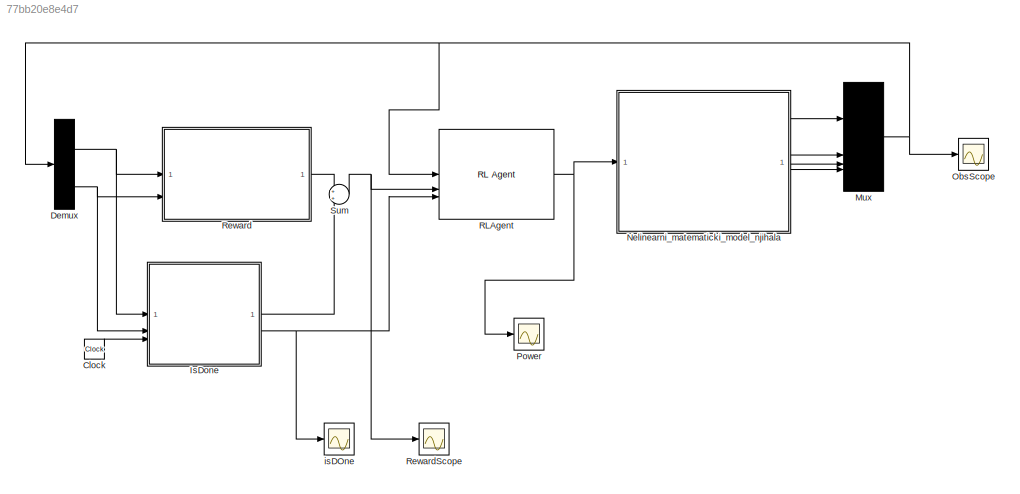
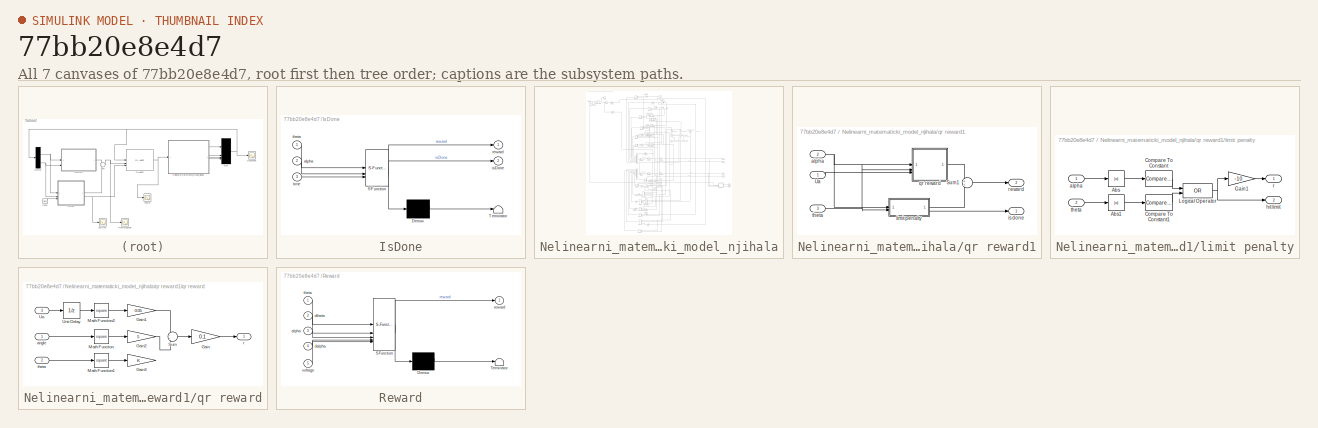
[diagram: thumbnail index - all 7 canvases of the model, root first then tree order]
MODEL slx_77bb20e8e4d7
KIND model
CONFIG AbsTol = auto
CONFIG EnableMultiTasking = off
CONFIG FixedStep = 0.01
CONFIG MaxStep = 0.01
CONFIG MinStep = auto
CONFIG RelTol = 1e-3
CONFIG SampleTimeConstraint = Unconstrained
CONFIG SolverName = FixedStepAuto
CONFIG StartTime = 0.0
CONFIG StopTime = 10
BLOCK [Clock] Clock
BLOCK [Demux] Demux
BLOCK [SubSystem] IsDone
  ErrorFcn = Stateflow.Translate.translate
  LibrarySourceBlock = simulink/User-Defined\nFunctions/MATLAB Function
  PermitHierarchicalResolution = ExplicitOnly
  SFBlockType = MATLAB Function
  TreatAsAtomicUnit = on
BLOCK [Demux] IsDone/ Demux 
  Outputs = 1
BLOCK [S-Function] IsDone/ SFunction 
  EnableBusSupport = on
  FunctionName = sf_sfun
  PortCounts = [3 3]
  SFcnIsStateOwnerBlock = off
  SFunctionDeploymentMode = off
  Tag = Stateflow S-Function 1
BLOCK [Terminator] IsDone/ Terminator 
BLOCK [Inport] IsDone/alpha
  Port = 2
BLOCK [Outport] IsDone/isDone
  Port = 2
BLOCK [Outport] IsDone/reward
BLOCK [Inport] IsDone/theta
BLOCK [Inport] IsDone/time
  Port = 3
BLOCK [Mux] Mux
  DisplayOption = signals
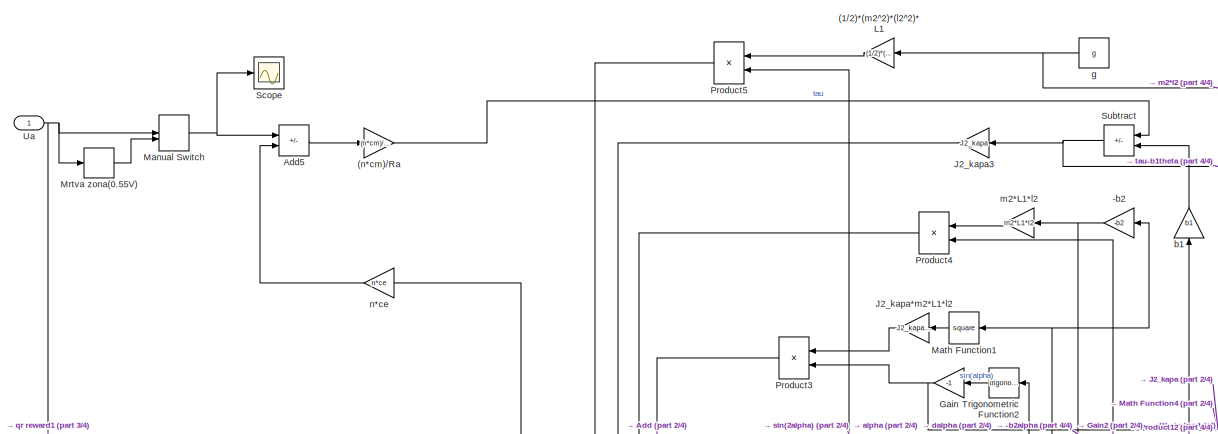
[diagram: Nelinearni_matematicki_model_njihala - part 1/4, top left region]
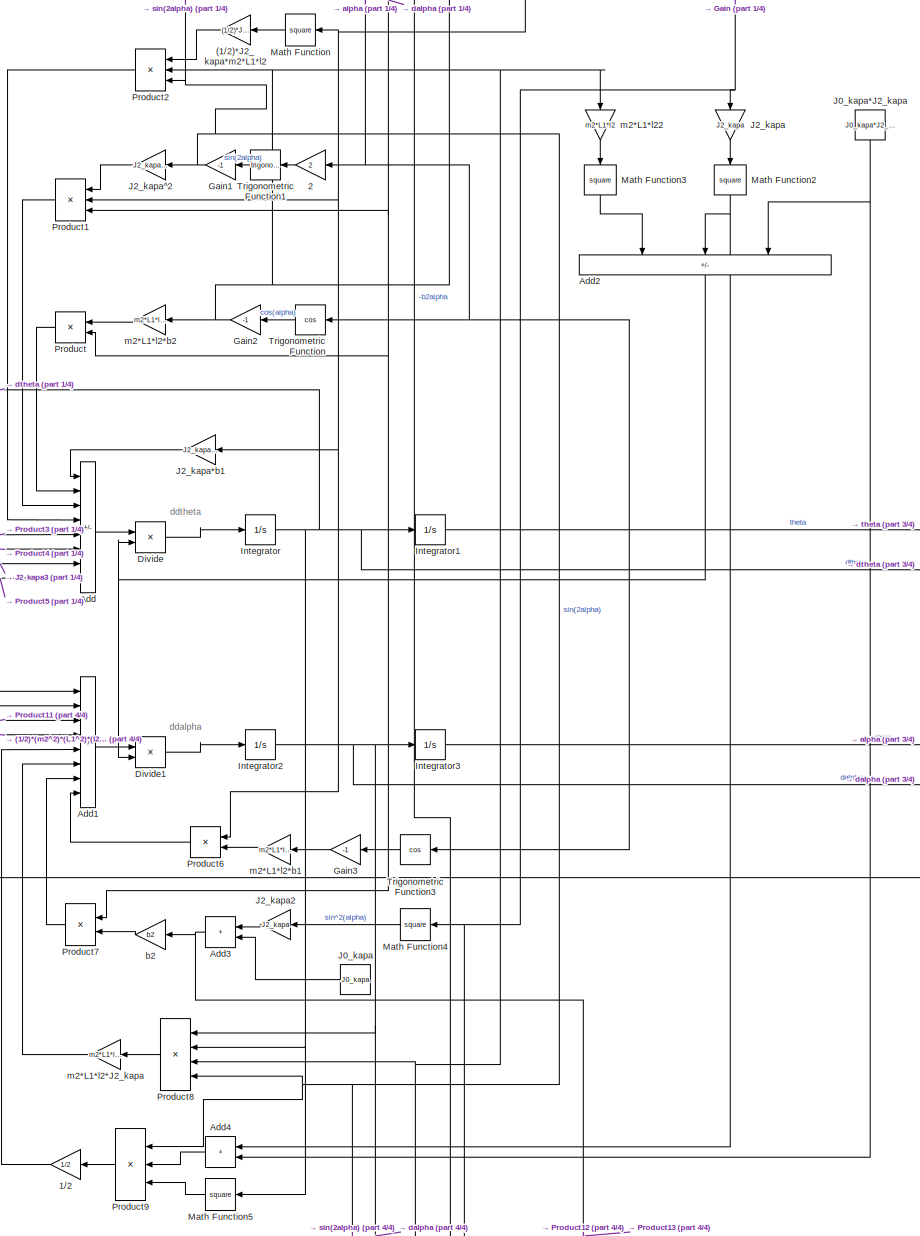
[diagram: Nelinearni_matematicki_model_njihala - part 2/4, central region]
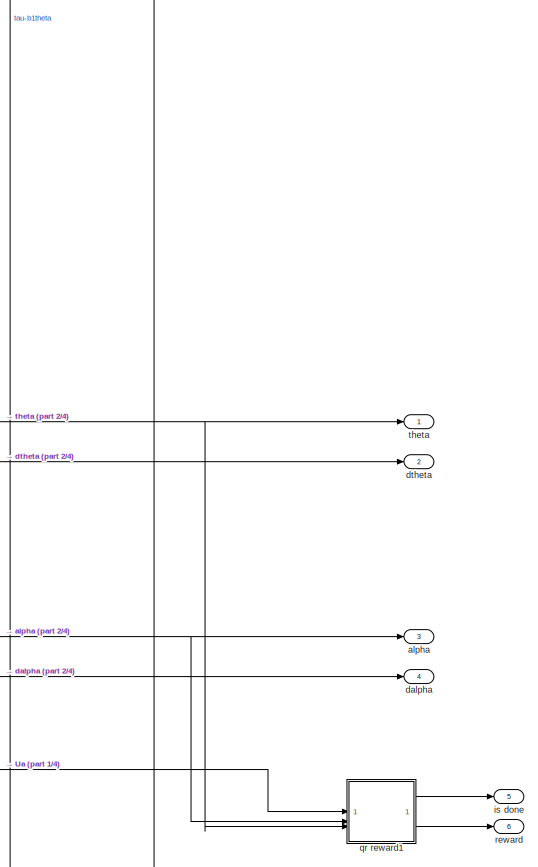
[diagram: Nelinearni_matematicki_model_njihala - part 3/4, middle right region]
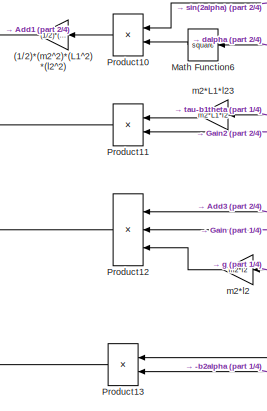
[diagram: Nelinearni_matematicki_model_njihala - part 4/4, bottom center region]
BLOCK [SubSystem] Nelinearni_matematicki_model_njihala
BLOCK [Gain] Nelinearni_matematicki_model_njihala/(1//2)*(m2^2)*(L1^2)*(l2^2)
  Gain = (1/2)*(m2^2)*(L1^2)*(l2^2)
  NameLocation = top
BLOCK [Gain] Nelinearni_matematicki_model_njihala/(1//2)*(m2^2)*(l2^2)*L1
  Gain = (1/2)*(m2^2)*(l2^2)*L1
  NameLocation = top
BLOCK [Gain] Nelinearni_matematicki_model_njihala/(1//2)*J2_kapa*m2*L1*l2
  Gain = (1/2)*J2_kapa*m2*L1*l2
  NameLocation = top
BLOCK [Gain] Nelinearni_matematicki_model_njihala/(n*cm)//Ra
  Gain = (n*cm)/Ra
BLOCK [Gain] Nelinearni_matematicki_model_njihala/-b2
  Gain = -b2
  NameLocation = top
BLOCK [Gain] Nelinearni_matematicki_model_njihala/1//2
  Gain = 1/2
  NameLocation = top
BLOCK [Gain] Nelinearni_matematicki_model_njihala/2
  Gain = 2
  NameLocation = top
BLOCK [Sum] Nelinearni_matematicki_model_njihala/Add
  IconShape = rectangular
  Inputs = -+--+-+-
BLOCK [Sum] Nelinearni_matematicki_model_njihala/Add1
  IconShape = rectangular
  Inputs = -+---+-+
BLOCK [Sum] Nelinearni_matematicki_model_njihala/Add2
  IconShape = rectangular
  Inputs = -++
  NameLocation = left
BLOCK [Sum] Nelinearni_matematicki_model_njihala/Add3
  IconShape = rectangular
  NameLocation = top
BLOCK [Sum] Nelinearni_matematicki_model_njihala/Add4
  IconShape = rectangular
  NameLocation = top
BLOCK [Sum] Nelinearni_matematicki_model_njihala/Add5
  IconShape = rectangular
  Inputs = +-
BLOCK [Product] Nelinearni_matematicki_model_njihala/Divide
  Inputs = */
BLOCK [Product] Nelinearni_matematicki_model_njihala/Divide1
  Inputs = */
BLOCK [Gain] Nelinearni_matematicki_model_njihala/Gain
  Gain = -1
  NameLocation = top
BLOCK [Gain] Nelinearni_matematicki_model_njihala/Gain1
  Gain = -1
  NameLocation = top
BLOCK [Gain] Nelinearni_matematicki_model_njihala/Gain2
  Gain = -1
  NameLocation = top
BLOCK [Gain] Nelinearni_matematicki_model_njihala/Gain3
  Gain = -1
  NameLocation = top
BLOCK [Integrator] Nelinearni_matematicki_model_njihala/Integrator
BLOCK [Integrator] Nelinearni_matematicki_model_njihala/Integrator1
BLOCK [Integrator] Nelinearni_matematicki_model_njihala/Integrator2
BLOCK [Integrator] Nelinearni_matematicki_model_njihala/Integrator3
  InitialCondition = (rand() * 0.2) - 0.1;
BLOCK [Constant] Nelinearni_matematicki_model_njihala/J0_kapa
  NameLocation = top
  Value = J0_kapa
BLOCK [Constant] Nelinearni_matematicki_model_njihala/J0_kapa*J2_kapa
  NameLocation = left
  Value = J0_kapa*J2_kapa
BLOCK [Gain] Nelinearni_matematicki_model_njihala/J2_kapa
  Gain = J2_kapa
  NameLocation = left
BLOCK [Gain] Nelinearni_matematicki_model_njihala/J2_kapa*b1
  Gain = J2_kapa*b1
  NameLocation = top
BLOCK [Gain] Nelinearni_matematicki_model_njihala/J2_kapa*m2*L1*l2
  Gain = J2_kapa*m2*L1*l2
  NameLocation = top
BLOCK [Gain] Nelinearni_matematicki_model_njihala/J2_kapa2
  Gain = J2_kapa
  NameLocation = top
BLOCK [Gain] Nelinearni_matematicki_model_njihala/J2_kapa3
  Gain = J2_kapa
  NameLocation = top
BLOCK [Gain] Nelinearni_matematicki_model_njihala/J2_kapa^2
  Gain = J2_kapa^2
  NameLocation = top
BLOCK [ManualSwitch] Nelinearni_matematicki_model_njihala/Manual Switch
BLOCK [Math] Nelinearni_matematicki_model_njihala/Math Function
  NameLocation = top
  Operator = square
BLOCK [Math] Nelinearni_matematicki_model_njihala/Math Function1
  NameLocation = top
  Operator = square
BLOCK [Math] Nelinearni_matematicki_model_njihala/Math Function2
  NameLocation = left
  Operator = square
BLOCK [Math] Nelinearni_matematicki_model_njihala/Math Function3
  NameLocation = left
  Operator = square
BLOCK [Math] Nelinearni_matematicki_model_njihala/Math Function4
  NameLocation = top
  Operator = square
BLOCK [Math] Nelinearni_matematicki_model_njihala/Math Function5
  NameLocation = top
  Operator = square
BLOCK [Math] Nelinearni_matematicki_model_njihala/Math Function6
  NameLocation = top
  Operator = square
BLOCK [DeadZone] Nelinearni_matematicki_model_njihala/Mrtva zona(0.55V)
  LowerValue = -0.55
  UpperValue = 0.55
BLOCK [Product] Nelinearni_matematicki_model_njihala/Product
  NameLocation = top
BLOCK [Product] Nelinearni_matematicki_model_njihala/Product1
  Inputs = 3
  NameLocation = top
BLOCK [Product] Nelinearni_matematicki_model_njihala/Product10
  NameLocation = top
BLOCK [Product] Nelinearni_matematicki_model_njihala/Product11
  NameLocation = top
BLOCK [Product] Nelinearni_matematicki_model_njihala/Product12
  Inputs = 3
  NameLocation = top
BLOCK [Product] Nelinearni_matematicki_model_njihala/Product13
  NameLocation = top
BLOCK [Product] Nelinearni_matematicki_model_njihala/Product2
  Inputs = 3
  NameLocation = top
BLOCK [Product] Nelinearni_matematicki_model_njihala/Product3
  NameLocation = top
BLOCK [Product] Nelinearni_matematicki_model_njihala/Product4
  NameLocation = top
BLOCK [Product] Nelinearni_matematicki_model_njihala/Product5
  NameLocation = top
BLOCK [Product] Nelinearni_matematicki_model_njihala/Product6
  NameLocation = top
BLOCK [Product] Nelinearni_matematicki_model_njihala/Product7
  NameLocation = top
BLOCK [Product] Nelinearni_matematicki_model_njihala/Product8
  Inputs = 4
  NameLocation = top
BLOCK [Product] Nelinearni_matematicki_model_njihala/Product9
  Inputs = 3
  NameLocation = top
BLOCK [Scope] Nelinearni_matematicki_model_njihala/Scope
  Floating = off
  NumInputPorts = 1
  ScopeSpecificationString = Simulink.scopes.TimeScopeBlockCfg('CurrentConfiguration', extmgr.ConfigurationSet(extmgr.Configuration('Core','General UI',true),extmgr.Configuration('Core','Source UI',true),extmgr.Configuration('Sources','WiredSimulink',true,'DataLoggingVariableName','ScopeData6'),extmgr.Configuration('Visuals','Time Domain',true,'SerializedDisplays',{struct('MinYLimReal','-4.13806','MaxYLimReal','1.14753','YLab...<+1372ch>
BLOCK [Sum] Nelinearni_matematicki_model_njihala/Subtract
  IconShape = rectangular
  Inputs = +-
  NameLocation = top
BLOCK [Trigonometry] Nelinearni_matematicki_model_njihala/Trigonometric Function
  NameLocation = top
  Operator = cos
BLOCK [Trigonometry] Nelinearni_matematicki_model_njihala/Trigonometric Function1
  NameLocation = top
BLOCK [Trigonometry] Nelinearni_matematicki_model_njihala/Trigonometric Function2
  NameLocation = top
BLOCK [Trigonometry] Nelinearni_matematicki_model_njihala/Trigonometric Function3
  NameLocation = top
  Operator = cos
BLOCK [Inport] Nelinearni_matematicki_model_njihala/Ua
BLOCK [Outport] Nelinearni_matematicki_model_njihala/alpha
  Port = 3
BLOCK [Gain] Nelinearni_matematicki_model_njihala/b1
  Gain = b1
  NameLocation = right
BLOCK [Gain] Nelinearni_matematicki_model_njihala/b2
  Gain = b2
  NameLocation = top
BLOCK [Outport] Nelinearni_matematicki_model_njihala/dalpha
  Port = 4
BLOCK [Outport] Nelinearni_matematicki_model_njihala/dtheta
  Port = 2
BLOCK [Constant] Nelinearni_matematicki_model_njihala/g
  NameLocation = top
  Value = g
BLOCK [Outport] Nelinearni_matematicki_model_njihala/is done
  Port = 5
  VectorParamsAs1DForOutWhenUnconnected = off
BLOCK [Gain] Nelinearni_matematicki_model_njihala/m2*L1*l2
  Gain = m2*L1*l2
  NameLocation = top
BLOCK [Gain] Nelinearni_matematicki_model_njihala/m2*L1*l2*J2_kapa
  Gain = m2*L1*l2*J2_kapa
  NameLocation = top
BLOCK [Gain] Nelinearni_matematicki_model_njihala/m2*L1*l2*b1
  Gain = m2*L1*l2*b1
  NameLocation = top
BLOCK [Gain] Nelinearni_matematicki_model_njihala/m2*L1*l2*b2
  Gain = m2*L1*l2*b2
  NameLocation = top
BLOCK [Gain] Nelinearni_matematicki_model_njihala/m2*L1*l22
  Gain = m2*L1*l2
  NameLocation = left
BLOCK [Gain] Nelinearni_matematicki_model_njihala/m2*L1*l23
  Gain = m2*L1*l2
  NameLocation = top
BLOCK [Gain] Nelinearni_matematicki_model_njihala/m2*l2
  Gain = m2*l2
  NameLocation = top
BLOCK [Gain] Nelinearni_matematicki_model_njihala/n*ce
  Gain = n*ce
  NameLocation = top
BLOCK [SubSystem] Nelinearni_matematicki_model_njihala/qr reward1
BLOCK [Sum] Nelinearni_matematicki_model_njihala/qr reward1/Sum1
BLOCK [Inport] Nelinearni_matematicki_model_njihala/qr reward1/Ua
BLOCK [Inport] Nelinearni_matematicki_model_njihala/qr reward1/alpha
  Port = 2
BLOCK [Outport] Nelinearni_matematicki_model_njihala/qr reward1/is done
  VectorParamsAs1DForOutWhenUnconnected = off
BLOCK [SubSystem] Nelinearni_matematicki_model_njihala/qr reward1/limit penalty
BLOCK [Abs] Nelinearni_matematicki_model_njihala/qr reward1/limit penalty/Abs
  SaturateOnIntegerOverflow = off
BLOCK [Abs] Nelinearni_matematicki_model_njihala/qr reward1/limit penalty/Abs1
  SaturateOnIntegerOverflow = off
BLOCK [Reference] Nelinearni_matematicki_model_njihala/qr reward1/limit penalty/Compare To Constant  REF=simulink/Logic and Bit
Operations/Compare
To Constant
  SourceBlock = simulink/Logic and Bit\nOperations/Compare\nTo Constant
  SourceType = Compare To Constant
BLOCK [Reference] Nelinearni_matematicki_model_njihala/qr reward1/limit penalty/Compare To Constant1  REF=simulink/Logic and Bit
Operations/Compare
To Constant
  SourceBlock = simulink/Logic and Bit\nOperations/Compare\nTo Constant
  SourceType = Compare To Constant
BLOCK [Gain] Nelinearni_matematicki_model_njihala/qr reward1/limit penalty/Gain1
  Gain = -10
BLOCK [Logic] Nelinearni_matematicki_model_njihala/qr reward1/limit penalty/Logical Operator
  AllPortsSameDT = off
  Operator = OR
  OutDataTypeStr = boolean
BLOCK [Inport] Nelinearni_matematicki_model_njihala/qr reward1/limit penalty/alpha
BLOCK [Outport] Nelinearni_matematicki_model_njihala/qr reward1/limit penalty/hit limit
  Port = 2
  VectorParamsAs1DForOutWhenUnconnected = off
BLOCK [Outport] Nelinearni_matematicki_model_njihala/qr reward1/limit penalty/r
  VectorParamsAs1DForOutWhenUnconnected = off
BLOCK [Inport] Nelinearni_matematicki_model_njihala/qr reward1/limit penalty/theta
  Port = 2
BLOCK [SubSystem] Nelinearni_matematicki_model_njihala/qr reward1/qr reward
BLOCK [Gain] Nelinearni_matematicki_model_njihala/qr reward1/qr reward/Gain
  Gain = 0.1
BLOCK [Gain] Nelinearni_matematicki_model_njihala/qr reward1/qr reward/Gain1
  Gain = 0.05
BLOCK [Gain] Nelinearni_matematicki_model_njihala/qr reward1/qr reward/Gain2
  Gain = 5
BLOCK [Gain] Nelinearni_matematicki_model_njihala/qr reward1/qr reward/Gain3
BLOCK [Math] Nelinearni_matematicki_model_njihala/qr reward1/qr reward/Math Function
  Operator = square
  SignedPower = on
BLOCK [Math] Nelinearni_matematicki_model_njihala/qr reward1/qr reward/Math Function1
  Operator = square
  SignedPower = on
BLOCK [Math] Nelinearni_matematicki_model_njihala/qr reward1/qr reward/Math Function2
  Operator = square
  SignedPower = on
BLOCK [Sum] Nelinearni_matematicki_model_njihala/qr reward1/qr reward/Sum
  Inputs = --
BLOCK [Inport] Nelinearni_matematicki_model_njihala/qr reward1/qr reward/Ua
  Port = 3
BLOCK [UnitDelay] Nelinearni_matematicki_model_njihala/qr reward1/qr reward/Unit Delay
  HasFrameUpgradeWarning = on
  SampleTime = -1
BLOCK [Inport] Nelinearni_matematicki_model_njihala/qr reward1/qr reward/angle
BLOCK [Outport] Nelinearni_matematicki_model_njihala/qr reward1/qr reward/r
  VectorParamsAs1DForOutWhenUnconnected = off
BLOCK [Inport] Nelinearni_matematicki_model_njihala/qr reward1/qr reward/theta
  Port = 2
BLOCK [Outport] Nelinearni_matematicki_model_njihala/qr reward1/reward
  Port = 2
  VectorParamsAs1DForOutWhenUnconnected = off
BLOCK [Inport] Nelinearni_matematicki_model_njihala/qr reward1/theta
  Port = 3
BLOCK [Outport] Nelinearni_matematicki_model_njihala/reward
  Port = 6
  VectorParamsAs1DForOutWhenUnconnected = off
BLOCK [Outport] Nelinearni_matematicki_model_njihala/theta
BLOCK [Scope] ObsScope
  Floating = off
  NumInputPorts = 1
  ScopeSpecificationString = Simulink.scopes.TimeScopeBlockCfg('CurrentConfiguration', extmgr.ConfigurationSet(extmgr.Configuration('Core','General UI',true),extmgr.Configuration('Core','Source UI',true),extmgr.Configuration('Sources','WiredSimulink',true,'DataLoggingVariableName','ScopeData1'),extmgr.Configuration('Visuals','Time Domain',true,'TimeAxisLabels','All','SerializedDisplays',{struct('MinYLimReal','-7.07209','MaxYL...<+1786ch>
BLOCK [Scope] Power
  Floating = off
  NumInputPorts = 1
  ScopeSpecificationString = Simulink.scopes.TimeScopeBlockCfg('CurrentConfiguration', extmgr.ConfigurationSet(extmgr.Configuration('Core','General UI',true),extmgr.Configuration('Core','Source UI',true),extmgr.Configuration('Sources','WiredSimulink',true,'DataLoggingVariableName','ScopeData1'),extmgr.Configuration('Visuals','Time Domain',true,'SerializedDisplays',{struct('MinYLimReal','-3.66705','MaxYLimReal','3.00341','YLab...<+1393ch>
BLOCK [Reference] RLAgent  REF=rllib/RL Agent
  SourceBlock = rllib/RL Agent
  SourceType = RL Agent
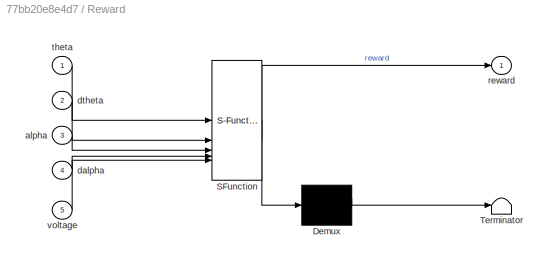
BLOCK [SubSystem] Reward
  ErrorFcn = Stateflow.Translate.translate
  LibrarySourceBlock = simulink/User-Defined\nFunctions/MATLAB Function
  PermitHierarchicalResolution = ExplicitOnly
  SFBlockType = MATLAB Function
  TreatAsAtomicUnit = on
BLOCK [Demux] Reward/ Demux 
  Outputs = 1
BLOCK [S-Function] Reward/ SFunction 
  EnableBusSupport = on
  FunctionName = sf_sfun
  PortCounts = [5 2]
  SFcnIsStateOwnerBlock = off
  SFunctionDeploymentMode = off
  Tag = Stateflow S-Function 2
BLOCK [Terminator] Reward/ Terminator 
BLOCK [Inport] Reward/alpha
  Port = 3
BLOCK [Inport] Reward/dalpha
  Port = 4
BLOCK [Inport] Reward/dtheta
  Port = 2
BLOCK [Outport] Reward/reward
BLOCK [Inport] Reward/theta
BLOCK [Inport] Reward/voltage
  Port = 5
BLOCK [Scope] RewardScope
  Floating = off
  NumInputPorts = 1
  ScopeSpecificationString = Simulink.scopes.TimeScopeBlockCfg('CurrentConfiguration', extmgr.ConfigurationSet(extmgr.Configuration('Core','General UI',true),extmgr.Configuration('Core','Source UI',true),extmgr.Configuration('Sources','WiredSimulink',true,'DataLoggingVariableName','ScopeData2'),extmgr.Configuration('Visuals','Time Domain',true,'SerializedDisplays',{struct('MinYLimReal','0.89885','MaxYLimReal','1.09885','YLabe...<+1390ch>
BLOCK [Sum] Sum
BLOCK [Scope] isDOne
  Floating = off
  NumInputPorts = 1
  ScopeSpecificationString = Simulink.scopes.TimeScopeBlockCfg('CurrentConfiguration', extmgr.ConfigurationSet(extmgr.Configuration('Core','General UI',true),extmgr.Configuration('Core','Source UI',true),extmgr.Configuration('Sources','WiredSimulink',true,'DataLoggingVariableName','ScopeData1'),extmgr.Configuration('Visuals','Time Domain',true,'SerializedDisplays',{struct('MinYLimReal','-0.125','MaxYLimReal','1.125','YLabelRe...<+1391ch>
ANNOTATION Nelinearni_matematicki_model_njihala: ddalpha
ANNOTATION Nelinearni_matematicki_model_njihala: ddtheta
LINE Clock:1 -> IsDone:3
NET Demux:1 -> IsDone:1, Reward:1
NET Demux:3 -> IsDone:2, Reward:3
LINE IsDone:1 -> Sum:2
NET IsDone:2 -> RLAgent:3, isDOne:1
NET Mux:1 -> Demux:1, ObsScope:1, RLAgent:1
LINE Nelinearni_matematicki_model_njihala/(1//2)*(m2^2)*(L1^2)*(l2^2):1 -> Nelinearni_matematicki_model_njihala/Add1:4
LINE Nelinearni_matematicki_model_njihala/(1//2)*(m2^2)*(l2^2)*L1:1 -> Nelinearni_matematicki_model_njihala/Product5:1
LINE Nelinearni_matematicki_model_njihala/(1//2)*J2_kapa*m2*L1*l2:1 -> Nelinearni_matematicki_model_njihala/Product2:1
LINE Nelinearni_matematicki_model_njihala/(n*cm)//Ra:1 -> Nelinearni_matematicki_model_njihala/Subtract:1
NET Nelinearni_matematicki_model_njihala/-b2:1 -> Nelinearni_matematicki_model_njihala/Product13:2, Nelinearni_matematicki_model_njihala/m2*L1*l2:1
LINE Nelinearni_matematicki_model_njihala/1//2:1 -> Nelinearni_matematicki_model_njihala/Add1:5
LINE Nelinearni_matematicki_model_njihala/2:1 -> Nelinearni_matematicki_model_njihala/Trigonometric Function1:1
LINE Nelinearni_matematicki_model_njihala/Add1:1 -> Nelinearni_matematicki_model_njihala/Divide1:1
NET Nelinearni_matematicki_model_njihala/Add2:1 -> Nelinearni_matematicki_model_njihala/Divide1:2, Nelinearni_matematicki_model_njihala/Divide:2
NET Nelinearni_matematicki_model_njihala/Add3:1 -> Nelinearni_matematicki_model_njihala/Product12:1, Nelinearni_matematicki_model_njihala/Product13:1, Nelinearni_matematicki_model_njihala/b2:1
LINE Nelinearni_matematicki_model_njihala/Add4:1 -> Nelinearni_matematicki_model_njihala/Product9:2
LINE Nelinearni_matematicki_model_njihala/Add5:1 -> Nelinearni_matematicki_model_njihala/(n*cm)//Ra:1
LINE Nelinearni_matematicki_model_njihala/Add:1 -> Nelinearni_matematicki_model_njihala/Divide:1
LINE Nelinearni_matematicki_model_njihala/Divide1:1 -> Nelinearni_matematicki_model_njihala/Integrator2:1
LINE Nelinearni_matematicki_model_njihala/Divide:1 -> Nelinearni_matematicki_model_njihala/Integrator:1
NET Nelinearni_matematicki_model_njihala/Gain1:1 -> Nelinearni_matematicki_model_njihala/J2_kapa^2:1, Nelinearni_matematicki_model_njihala/Product10:1, Nelinearni_matematicki_model_njihala/Product2:3, Nelinearni_matematicki_model_njihala/Product5:2, Nelinearni_matematicki_model_njihala/Product8:4, Nelinearni_matematicki_model_njihala/Product9:1
NET Nelinearni_matematicki_model_njihala/Gain2:1 -> Nelinearni_matematicki_model_njihala/Product11:2, Nelinearni_matematicki_model_njihala/Product2:2, Nelinearni_matematicki_model_njihala/Product4:2, Nelinearni_matematicki_model_njihala/Product8:3, Nelinearni_matematicki_model_njihala/m2*L1*l2*b2:1, Nelinearni_matematicki_model_njihala/m2*L1*l22:1
LINE Nelinearni_matematicki_model_njihala/Gain3:1 -> Nelinearni_matematicki_model_njihala/m2*L1*l2*b1:1
NET Nelinearni_matematicki_model_njihala/Gain:1 -> Nelinearni_matematicki_model_njihala/J2_kapa:1, Nelinearni_matematicki_model_njihala/Math Function4:1, Nelinearni_matematicki_model_njihala/Product12:2, Nelinearni_matematicki_model_njihala/Product3:2
NET Nelinearni_matematicki_model_njihala/Integrator1:1 -> Nelinearni_matematicki_model_njihala/qr reward1:3, Nelinearni_matematicki_model_njihala/theta:1
NET Nelinearni_matematicki_model_njihala/Integrator2:1 -> Nelinearni_matematicki_model_njihala/-b2:1, Nelinearni_matematicki_model_njihala/Integrator3:1, Nelinearni_matematicki_model_njihala/Math Function1:1, Nelinearni_matematicki_model_njihala/Math Function6:1, Nelinearni_matematicki_model_njihala/Product1:3, Nelinearni_matematicki_model_njihala/Product7:1, Nelinearni_matematicki_model_njihala/Product8:1, Nelinearni_matematicki_model_njihala/Product:2, Nelinearni_matematicki_model_njihala/dalpha:1
NET Nelinearni_matematicki_model_njihala/Integrator3:1 -> Nelinearni_matematicki_model_njihala/2:1, Nelinearni_matematicki_model_njihala/Trigonometric Function2:1, Nelinearni_matematicki_model_njihala/Trigonometric Function3:1, Nelinearni_matematicki_model_njihala/Trigonometric Function:1, Nelinearni_matematicki_model_njihala/alpha:1, Nelinearni_matematicki_model_njihala/qr reward1:2
NET Nelinearni_matematicki_model_njihala/Integrator:1 -> Nelinearni_matematicki_model_njihala/Integrator1:1, Nelinearni_matematicki_model_njihala/J2_kapa*b1:1, Nelinearni_matematicki_model_njihala/Math Function5:1, Nelinearni_matematicki_model_njihala/Math Function:1, Nelinearni_matematicki_model_njihala/Product1:2, Nelinearni_matematicki_model_njihala/Product6:1, Nelinearni_matematicki_model_njihala/Product8:2, Nelinearni_matematicki_model_njihala/b1:1, Nelinearni_matematicki_model_njihala/dtheta:1, Nelinearni_matematicki_model_njihala/n*ce:1
NET Nelinearni_matematicki_model_njihala/J0_kapa*J2_kapa:1 -> Nelinearni_matematicki_model_njihala/Add2:3, Nelinearni_matematicki_model_njihala/Add4:2
LINE Nelinearni_matematicki_model_njihala/J0_kapa:1 -> Nelinearni_matematicki_model_njihala/Add3:2
LINE Nelinearni_matematicki_model_njihala/J2_kapa*b1:1 -> Nelinearni_matematicki_model_njihala/Add:1
LINE Nelinearni_matematicki_model_njihala/J2_kapa*m2*L1*l2:1 -> Nelinearni_matematicki_model_njihala/Product3:1
LINE Nelinearni_matematicki_model_njihala/J2_kapa2:1 -> Nelinearni_matematicki_model_njihala/Add3:1
LINE Nelinearni_matematicki_model_njihala/J2_kapa3:1 -> Nelinearni_matematicki_model_njihala/Add:7
LINE Nelinearni_matematicki_model_njihala/J2_kapa:1 -> Nelinearni_matematicki_model_njihala/Math Function2:1
LINE Nelinearni_matematicki_model_njihala/J2_kapa^2:1 -> Nelinearni_matematicki_model_njihala/Product1:1
NET Nelinearni_matematicki_model_njihala/Manual Switch:1 -> Nelinearni_matematicki_model_njihala/Add5:1, Nelinearni_matematicki_model_njihala/Scope:1
LINE Nelinearni_matematicki_model_njihala/Math Function1:1 -> Nelinearni_matematicki_model_njihala/J2_kapa*m2*L1*l2:1
NET Nelinearni_matematicki_model_njihala/Math Function2:1 -> Nelinearni_matematicki_model_njihala/Add2:2, Nelinearni_matematicki_model_njihala/Add4:1
LINE Nelinearni_matematicki_model_njihala/Math Function3:1 -> Nelinearni_matematicki_model_njihala/Add2:1
LINE Nelinearni_matematicki_model_njihala/Math Function4:1 -> Nelinearni_matematicki_model_njihala/J2_kapa2:1
LINE Nelinearni_matematicki_model_njihala/Math Function5:1 -> Nelinearni_matematicki_model_njihala/Product9:3
LINE Nelinearni_matematicki_model_njihala/Math Function6:1 -> Nelinearni_matematicki_model_njihala/Product10:2
LINE Nelinearni_matematicki_model_njihala/Math Function:1 -> Nelinearni_matematicki_model_njihala/(1//2)*J2_kapa*m2*L1*l2:1
LINE Nelinearni_matematicki_model_njihala/Mrtva zona(0.55V):1 -> Nelinearni_matematicki_model_njihala/Manual Switch:2
LINE Nelinearni_matematicki_model_njihala/Product10:1 -> Nelinearni_matematicki_model_njihala/(1//2)*(m2^2)*(L1^2)*(l2^2):1
LINE Nelinearni_matematicki_model_njihala/Product11:1 -> Nelinearni_matematicki_model_njihala/Add1:3
LINE Nelinearni_matematicki_model_njihala/Product12:1 -> Nelinearni_matematicki_model_njihala/Add1:1
LINE Nelinearni_matematicki_model_njihala/Product13:1 -> Nelinearni_matematicki_model_njihala/Add1:2
LINE Nelinearni_matematicki_model_njihala/Product1:1 -> Nelinearni_matematicki_model_njihala/Add:3
LINE Nelinearni_matematicki_model_njihala/Product2:1 -> Nelinearni_matematicki_model_njihala/Add:4
LINE Nelinearni_matematicki_model_njihala/Product3:1 -> Nelinearni_matematicki_model_njihala/Add:5
LINE Nelinearni_matematicki_model_njihala/Product4:1 -> Nelinearni_matematicki_model_njihala/Add:6
LINE Nelinearni_matematicki_model_njihala/Product5:1 -> Nelinearni_matematicki_model_njihala/Add:8
LINE Nelinearni_matematicki_model_njihala/Product6:1 -> Nelinearni_matematicki_model_njihala/Add1:8
LINE Nelinearni_matematicki_model_njihala/Product7:1 -> Nelinearni_matematicki_model_njihala/Add1:7
LINE Nelinearni_matematicki_model_njihala/Product8:1 -> Nelinearni_matematicki_model_njihala/m2*L1*l2*J2_kapa:1
LINE Nelinearni_matematicki_model_njihala/Product9:1 -> Nelinearni_matematicki_model_njihala/1//2:1
LINE Nelinearni_matematicki_model_njihala/Product:1 -> Nelinearni_matematicki_model_njihala/Add:2
NET Nelinearni_matematicki_model_njihala/Subtract:1 -> Nelinearni_matematicki_model_njihala/J2_kapa3:1, Nelinearni_matematicki_model_njihala/m2*L1*l23:1
LINE Nelinearni_matematicki_model_njihala/Trigonometric Function1:1 -> Nelinearni_matematicki_model_njihala/Gain1:1
LINE Nelinearni_matematicki_model_njihala/Trigonometric Function2:1 -> Nelinearni_matematicki_model_njihala/Gain:1
LINE Nelinearni_matematicki_model_njihala/Trigonometric Function3:1 -> Nelinearni_matematicki_model_njihala/Gain3:1
LINE Nelinearni_matematicki_model_njihala/Trigonometric Function:1 -> Nelinearni_matematicki_model_njihala/Gain2:1
NET Nelinearni_matematicki_model_njihala/Ua:1 -> Nelinearni_matematicki_model_njihala/Manual Switch:1, Nelinearni_matematicki_model_njihala/Mrtva zona(0.55V):1, Nelinearni_matematicki_model_njihala/qr reward1:1
LINE Nelinearni_matematicki_model_njihala/b1:1 -> Nelinearni_matematicki_model_njihala/Subtract:2
LINE Nelinearni_matematicki_model_njihala/b2:1 -> Nelinearni_matematicki_model_njihala/Product7:2
NET Nelinearni_matematicki_model_njihala/g:1 -> Nelinearni_matematicki_model_njihala/(1//2)*(m2^2)*(l2^2)*L1:1, Nelinearni_matematicki_model_njihala/m2*l2:1
LINE Nelinearni_matematicki_model_njihala/m2*L1*l2*J2_kapa:1 -> Nelinearni_matematicki_model_njihala/Add1:6
LINE Nelinearni_matematicki_model_njihala/m2*L1*l2*b1:1 -> Nelinearni_matematicki_model_njihala/Product6:2
LINE Nelinearni_matematicki_model_njihala/m2*L1*l2*b2:1 -> Nelinearni_matematicki_model_njihala/Product:1
LINE Nelinearni_matematicki_model_njihala/m2*L1*l22:1 -> Nelinearni_matematicki_model_njihala/Math Function3:1
LINE Nelinearni_matematicki_model_njihala/m2*L1*l23:1 -> Nelinearni_matematicki_model_njihala/Product11:1
LINE Nelinearni_matematicki_model_njihala/m2*L1*l2:1 -> Nelinearni_matematicki_model_njihala/Product4:1
LINE Nelinearni_matematicki_model_njihala/m2*l2:1 -> Nelinearni_matematicki_model_njihala/Product12:3
LINE Nelinearni_matematicki_model_njihala/n*ce:1 -> Nelinearni_matematicki_model_njihala/Add5:2
LINE Nelinearni_matematicki_model_njihala/qr reward1/Sum1:1 -> Nelinearni_matematicki_model_njihala/qr reward1/reward:1
LINE Nelinearni_matematicki_model_njihala/qr reward1/Ua:1 -> Nelinearni_matematicki_model_njihala/qr reward1/qr reward:3
NET Nelinearni_matematicki_model_njihala/qr reward1/alpha:1 -> Nelinearni_matematicki_model_njihala/qr reward1/limit penalty:1, Nelinearni_matematicki_model_njihala/qr reward1/qr reward:1
LINE Nelinearni_matematicki_model_njihala/qr reward1/limit penalty/Abs1:1 -> Nelinearni_matematicki_model_njihala/qr reward1/limit penalty/Compare To Constant1:1
LINE Nelinearni_matematicki_model_njihala/qr reward1/limit penalty/Abs:1 -> Nelinearni_matematicki_model_njihala/qr reward1/limit penalty/Compare To Constant:1
LINE Nelinearni_matematicki_model_njihala/qr reward1/limit penalty/Compare To Constant1:1 -> Nelinearni_matematicki_model_njihala/qr reward1/limit penalty/Logical Operator:2
LINE Nelinearni_matematicki_model_njihala/qr reward1/limit penalty/Compare To Constant:1 -> Nelinearni_matematicki_model_njihala/qr reward1/limit penalty/Logical Operator:1
LINE Nelinearni_matematicki_model_njihala/qr reward1/limit penalty/Gain1:1 -> Nelinearni_matematicki_model_njihala/qr reward1/limit penalty/r:1
NET Nelinearni_matematicki_model_njihala/qr reward1/limit penalty/Logical Operator:1 -> Nelinearni_matematicki_model_njihala/qr reward1/limit penalty/Gain1:1, Nelinearni_matematicki_model_njihala/qr reward1/limit penalty/hit limit:1
LINE Nelinearni_matematicki_model_njihala/qr reward1/limit penalty/alpha:1 -> Nelinearni_matematicki_model_njihala/qr reward1/limit penalty/Abs:1
LINE Nelinearni_matematicki_model_njihala/qr reward1/limit penalty/theta:1 -> Nelinearni_matematicki_model_njihala/qr reward1/limit penalty/Abs1:1
LINE Nelinearni_matematicki_model_njihala/qr reward1/limit penalty:1 -> Nelinearni_matematicki_model_njihala/qr reward1/Sum1:2
LINE Nelinearni_matematicki_model_njihala/qr reward1/limit penalty:2 -> Nelinearni_matematicki_model_njihala/qr reward1/is done:1
LINE Nelinearni_matematicki_model_njihala/qr reward1/qr reward/Gain1:1 -> Nelinearni_matematicki_model_njihala/qr reward1/qr reward/Sum:1
LINE Nelinearni_matematicki_model_njihala/qr reward1/qr reward/Gain2:1 -> Nelinearni_matematicki_model_njihala/qr reward1/qr reward/Sum:2
LINE Nelinearni_matematicki_model_njihala/qr reward1/qr reward/Gain:1 -> Nelinearni_matematicki_model_njihala/qr reward1/qr reward/r:1
LINE Nelinearni_matematicki_model_njihala/qr reward1/qr reward/Math Function1:1 -> Nelinearni_matematicki_model_njihala/qr reward1/qr reward/Gain3:1
LINE Nelinearni_matematicki_model_njihala/qr reward1/qr reward/Math Function2:1 -> Nelinearni_matematicki_model_njihala/qr reward1/qr reward/Gain1:1
LINE Nelinearni_matematicki_model_njihala/qr reward1/qr reward/Math Function:1 -> Nelinearni_matematicki_model_njihala/qr reward1/qr reward/Gain2:1
LINE Nelinearni_matematicki_model_njihala/qr reward1/qr reward/Sum:1 -> Nelinearni_matematicki_model_njihala/qr reward1/qr reward/Gain:1
LINE Nelinearni_matematicki_model_njihala/qr reward1/qr reward/Ua:1 -> Nelinearni_matematicki_model_njihala/qr reward1/qr reward/Unit Delay:1
LINE Nelinearni_matematicki_model_njihala/qr reward1/qr reward/Unit Delay:1 -> Nelinearni_matematicki_model_njihala/qr reward1/qr reward/Math Function2:1
LINE Nelinearni_matematicki_model_njihala/qr reward1/qr reward/angle:1 -> Nelinearni_matematicki_model_njihala/qr reward1/qr reward/Math Function:1
LINE Nelinearni_matematicki_model_njihala/qr reward1/qr reward/theta:1 -> Nelinearni_matematicki_model_njihala/qr reward1/qr reward/Math Function1:1
LINE Nelinearni_matematicki_model_njihala/qr reward1/qr reward:1 -> Nelinearni_matematicki_model_njihala/qr reward1/Sum1:1
NET Nelinearni_matematicki_model_njihala/qr reward1/theta:1 -> Nelinearni_matematicki_model_njihala/qr reward1/limit penalty:2, Nelinearni_matematicki_model_njihala/qr reward1/qr reward:2
LINE Nelinearni_matematicki_model_njihala/qr reward1:1 -> Nelinearni_matematicki_model_njihala/is done:1
LINE Nelinearni_matematicki_model_njihala/qr reward1:2 -> Nelinearni_matematicki_model_njihala/reward:1
LINE Nelinearni_matematicki_model_njihala:1 -> Mux:1
LINE Nelinearni_matematicki_model_njihala:2 -> Mux:2
LINE Nelinearni_matematicki_model_njihala:3 -> Mux:3
LINE Nelinearni_matematicki_model_njihala:4 -> Mux:4
NET RLAgent:1 -> Nelinearni_matematicki_model_njihala:1, Power:1
LINE Reward:1 -> Sum:1
NET Sum:1 -> RLAgent:2, RewardScope:1
note: NET lines group one-source signal fan-out (src -> all destinations, sorted); 1:1 wires keep LINE
CHART IsDone states=1 transitions=1
  STATE_LABEL 'eML_blk_kernel()'
  STATE_LABEL 'SCRIPT:\nfunction [reward, isDone]= checkIsDone(theta , alpha, time)\n% provjerava uvjet završetka na temelju trenutnog stanja i vremena\n% Završava epizodu ako pendulum padne (theta premašuje granicu)\n% ili ako se dostigne vremenski limit\n    thetalimit = pi;\n    timeLimit = 10;\n    alphaLimit = pi/8;\n    if abs(theta) > thetalimit || abs(alpha) > alphaLimit\n        reward = -10;\n        isDone = tr...<+141ch>'
CHART Reward states=1 transitions=1
  STATE_LABEL 'eML_blk_kernel()'
  STATE_LABEL 'SCRIPT:\nfunction reward = calculateReward(theta, dtheta,alpha, dalpha,  voltage)\n    reward = 1-alpha^2 -0.001 * voltage^2 -0.1*theta^2;\nend'
CHART  states=0 transitions=0
CHART  states=0 transitions=0
